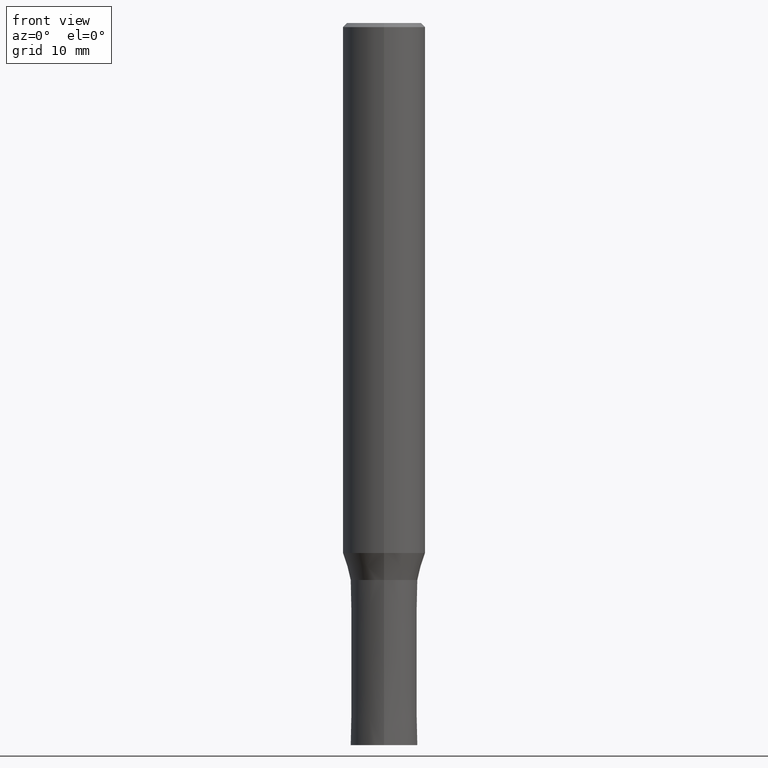
[diagram: clean part render]
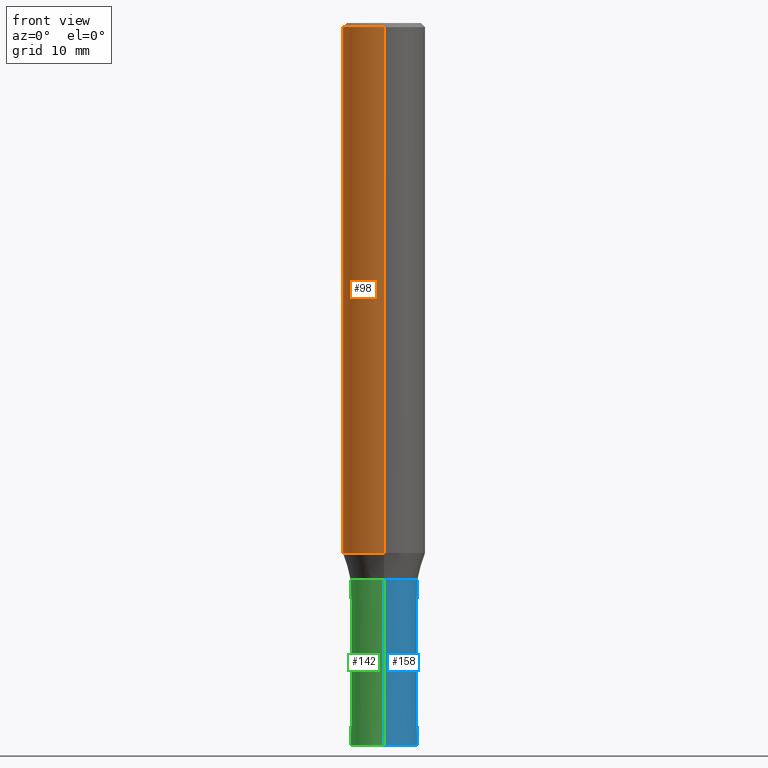
[diagram: same view with three faces highlighted in distinct colors, each labeled with its STEP entity id]
A machine part, front view with three faces highlighted in distinct colors.
Their STEP definitions:

[orange] entity #98 — the highlighted cylindrical surface (partial cylindrical patch) has radius 4 mm, axis along (-0, -0, 1).
#90=VERTEX_POINT('',#211);
#92=EDGE_CURVE('',#90,#134,#213,.T.);
#94=VERTEX_POINT('',#215);
#98=ADVANCED_FACE('',(#219),#220,.T.);
#106=VERTEX_POINT('',#231);
#132=EDGE_CURVE('',#106,#94,#260,.T.);
#134=VERTEX_POINT('',#262);
#176=EDGE_CURVE('',#94,#90,#310,.T.);
#184=EDGE_CURVE('',#106,#134,#319,.T.);
#211=CARTESIAN_POINT('',(0.0,4.0,-0.399999999999999));
#213=LINE('',#344,#345);
#215=CARTESIAN_POINT('',(4.89842541528951E-016,-4.0,-0.399999999999999));
#219=FACE_OUTER_BOUND('',#353,.T.);
#220=CYLINDRICAL_SURFACE('',#354,4.0);
#231=CARTESIAN_POINT('',(4.89842541528951E-016,-4.0,-51.384));
#260=LINE('',#401,#402);
#262=CARTESIAN_POINT('',(0.0,4.0,-51.384));
#310=CIRCLE('',#464,4.0);
#319=CIRCLE('',#474,4.0);
#344=CARTESIAN_POINT('',(-4.89842541528951E-016,4.0,-25.892));
#345=VECTOR('',#480,1.0);
#353=EDGE_LOOP('',(#483,#484,#485,#486));
#354=AXIS2_PLACEMENT_3D('',#487,#488,#489);
#401=CARTESIAN_POINT('',(4.89842541528951E-016,-4.0,-25.892));
#402=VECTOR('',#539,1.0);
#464=AXIS2_PLACEMENT_3D('',#606,#607,#608);
#474=AXIS2_PLACEMENT_3D('',#621,#622,#623);
#480=DIRECTION('',(0.0,0.0,-1.0));
#483=ORIENTED_EDGE('',*,*,#92,.T.);
#484=ORIENTED_EDGE('',*,*,#184,.F.);
#485=ORIENTED_EDGE('',*,*,#132,.T.);
#486=ORIENTED_EDGE('',*,*,#176,.T.);
#487=CARTESIAN_POINT('',(0.0,0.0,-25.892));
#488=DIRECTION('',(-0.0,-0.0,1.0));
#489=DIRECTION('',(0.0,1.0,0.0));
#539=DIRECTION('',(-0.0,-0.0,1.0));
#606=CARTESIAN_POINT('',(0.0,0.0,-0.399999999999999));
#607=DIRECTION('',(0.0,0.0,-1.0));
#608=DIRECTION('',(0.0,1.0,0.0));
#621=CARTESIAN_POINT('',(0.0,0.0,-51.384));
#622=DIRECTION('',(0.0,0.0,-1.0));
#623=DIRECTION('',(0.0,1.0,0.0));

[blue] entity #158 — the highlighted conical surface has half-angle 0 deg.
#84=EDGE_CURVE('',#114,#136,#205,.T.);
#110=EDGE_CURVE('',#136,#160,#235,.T.);
#114=VERTEX_POINT('',#239);
#120=EDGE_CURVE('',#114,#138,#246,.T.);
#136=VERTEX_POINT('',#264);
#138=VERTEX_POINT('',#266);
#144=EDGE_CURVE('',#160,#138,#274,.T.);
#158=ADVANCED_FACE('',(#290),#291,.T.);
#160=VERTEX_POINT('',#293);
#205=LINE('',#333,#334);
#235=CIRCLE('',#373,3.25);
#239=CARTESIAN_POINT('',(0.0,3.2499,-54.0));
#246=CIRCLE('',#386,3.2499);
#264=CARTESIAN_POINT('',(0.0,3.25,-70.0));
#266=CARTESIAN_POINT('',(3.97984818928734E-016,-3.2499,-54.0));
#274=LINE('',#417,#418);
#290=FACE_OUTER_BOUND('',#439,.T.);
#291=CONICAL_SURFACE('',#440,3.24995,6.24999999993181E-006);
#293=CARTESIAN_POINT('',(3.97997064992273E-016,-3.25,-70.0));
#333=CARTESIAN_POINT('',(-3.97990941960504E-016,3.24995,-62.0));
#334=VECTOR('',#476,1.0);
#373=AXIS2_PLACEMENT_3D('',#508,#509,#510);
#386=AXIS2_PLACEMENT_3D('',#520,#521,#522);
#417=CARTESIAN_POINT('',(3.97990941960504E-016,-3.24995,-62.0));
#418=VECTOR('',#554,1.0);
#439=EDGE_LOOP('',(#580,#581,#582,#583));
#440=AXIS2_PLACEMENT_3D('',#584,#585,#586);
#476=DIRECTION('',(-7.65378971125652E-022,6.24999999989112E-006,-0.999999999980469));
#508=CARTESIAN_POINT('',(0.0,0.0,-70.0));
#509=DIRECTION('',(0.0,0.0,-1.0));
#510=DIRECTION('',(0.0,1.0,0.0));
#520=CARTESIAN_POINT('',(0.0,0.0,-54.0));
#521=DIRECTION('',(0.0,0.0,-1.0));
#522=DIRECTION('',(0.0,1.0,0.0));
#554=DIRECTION('',(-7.65378971125652E-022,6.24999999989112E-006,0.999999999980469));
#580=ORIENTED_EDGE('',*,*,#84,.F.);
#581=ORIENTED_EDGE('',*,*,#120,.T.);
#582=ORIENTED_EDGE('',*,*,#144,.F.);
#583=ORIENTED_EDGE('',*,*,#110,.F.);
#584=CARTESIAN_POINT('',(0.0,0.0,-62.0));
#585=DIRECTION('',(0.0,-0.0,-1.0));
#586=DIRECTION('',(0.0,1.0,0.0));

[green] entity #142 — the highlighted conical surface has half-angle 0 deg.
#84=EDGE_CURVE('',#114,#136,#205,.T.);
#114=VERTEX_POINT('',#239);
#136=VERTEX_POINT('',#264);
#138=VERTEX_POINT('',#266);
#142=ADVANCED_FACE('',(#271),#272,.T.);
#144=EDGE_CURVE('',#160,#138,#274,.T.);
#150=EDGE_CURVE('',#160,#136,#281,.T.);
#160=VERTEX_POINT('',#293);
#170=EDGE_CURVE('',#138,#114,#304,.T.);
#205=LINE('',#333,#334);
#239=CARTESIAN_POINT('',(0.0,3.2499,-54.0));
#264=CARTESIAN_POINT('',(0.0,3.25,-70.0));
#266=CARTESIAN_POINT('',(3.97984818928734E-016,-3.2499,-54.0));
#271=FACE_OUTER_BOUND('',#413,.T.);
#272=CONICAL_SURFACE('',#414,3.24995,6.24999999993181E-006);
#274=LINE('',#417,#418);
#281=CIRCLE('',#427,3.25);
#293=CARTESIAN_POINT('',(3.97997064992273E-016,-3.25,-70.0));
#304=CIRCLE('',#456,3.2499);
#333=CARTESIAN_POINT('',(-3.97990941960504E-016,3.24995,-62.0));
#334=VECTOR('',#476,1.0);
#413=EDGE_LOOP('',(#547,#548,#549,#550));
#414=AXIS2_PLACEMENT_3D('',#551,#552,#553);
#417=CARTESIAN_POINT('',(3.97990941960504E-016,-3.24995,-62.0));
#418=VECTOR('',#554,1.0);
#427=AXIS2_PLACEMENT_3D('',#566,#567,#568);
#456=AXIS2_PLACEMENT_3D('',#600,#601,#602);
#476=DIRECTION('',(-7.65378971125652E-022,6.24999999989112E-006,-0.999999999980469));
#547=ORIENTED_EDGE('',*,*,#84,.T.);
#548=ORIENTED_EDGE('',*,*,#150,.F.);
#549=ORIENTED_EDGE('',*,*,#144,.T.);
#550=ORIENTED_EDGE('',*,*,#170,.T.);
#551=CARTESIAN_POINT('',(0.0,0.0,-62.0));
#552=DIRECTION('',(0.0,-0.0,-1.0));
#553=DIRECTION('',(0.0,1.0,0.0));
#554=DIRECTION('',(-7.65378971125652E-022,6.24999999989112E-006,0.999999999980469));
#566=CARTESIAN_POINT('',(0.0,0.0,-70.0));
#567=DIRECTION('',(0.0,0.0,-1.0));
#568=DIRECTION('',(0.0,1.0,0.0));
#600=CARTESIAN_POINT('',(0.0,0.0,-54.0));
#601=DIRECTION('',(0.0,0.0,-1.0));
#602=DIRECTION('',(0.0,1.0,0.0));